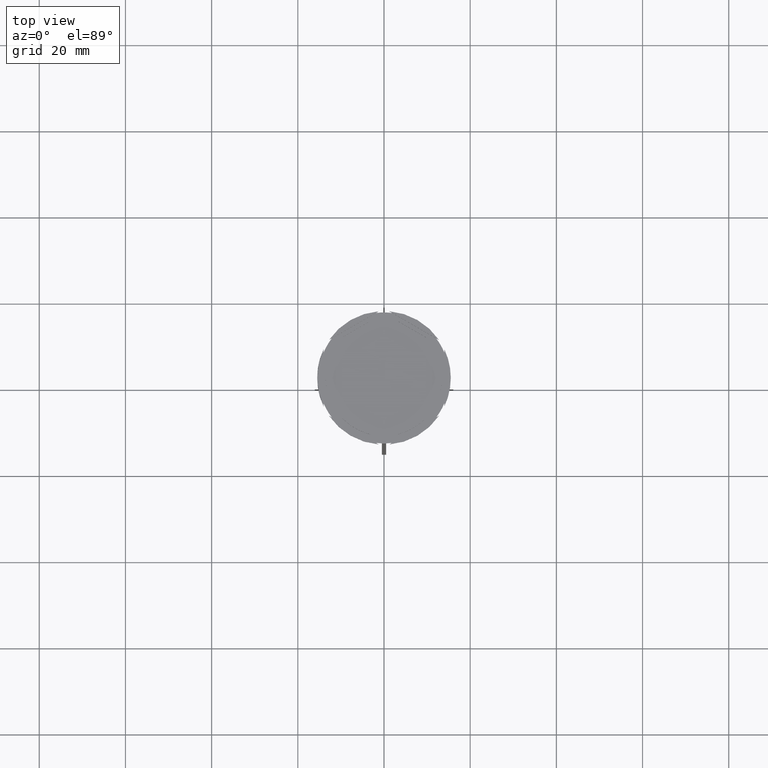
[diagram: clean part render]
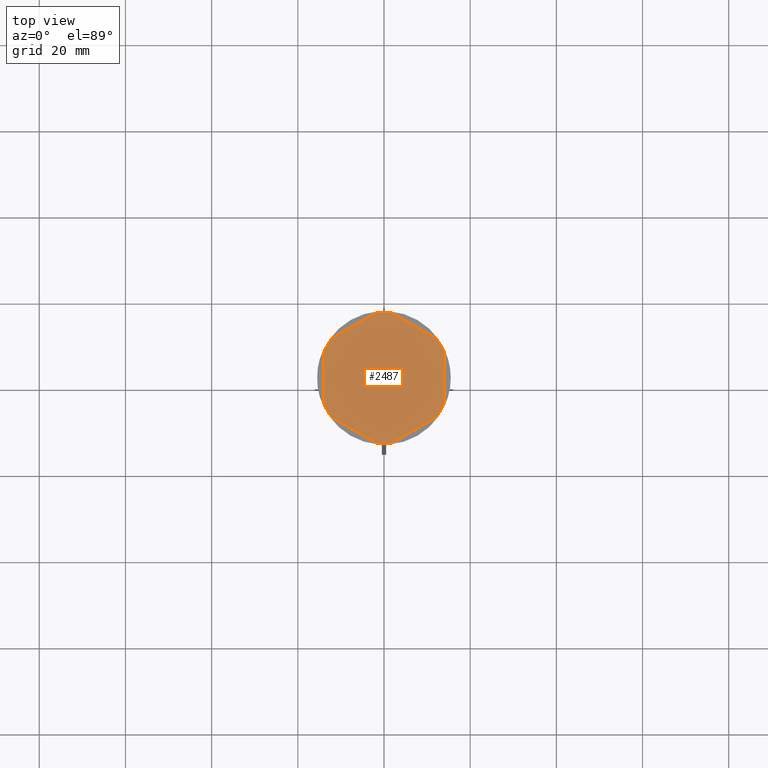
[diagram: same view with one face highlighted and labeled with its STEP entity id]
A machine part, top view. The second image highlights one B-rep face of the part: STEP entity #2487.
In plain terms, the highlighted planar face has unit normal (0, 0, 1).
Its self-contained STEP definition (entity closure, byte-faithful):
#2 = EDGE_CURVE ( 'NONE', #1822, #2410, #1565, .T. ) ;
#12 = DIRECTION ( 'NONE',  ( 1.000000000000000000, 0.000000000000000000, 0.000000000000000000 ) ) ;
#16 = ORIENTED_EDGE ( 'NONE', *, *, #2065, .F. ) ;
#17 = CARTESIAN_POINT ( 'NONE',  ( 14.00000000000000000, 5.919459434779493989, -1.000000000000000000 ) ) ;
#39 = CIRCLE ( 'NONE', #2824, 15.19999999999999929 ) ;
#46 = DIRECTION ( 'NONE',  ( -0.000000000000000000, -0.000000000000000000, -1.000000000000000000 ) ) ;
#57 = PLANE ( 'NONE',  #1030 ) ;
#68 = FACE_OUTER_BOUND ( 'NONE', #2441, .T. ) ;
#89 = ORIENTED_EDGE ( 'NONE', *, *, #1210, .F. ) ;
#92 = CARTESIAN_POINT ( 'NONE',  ( 3.347619946770397537, 13.07835772151782905, -1.000000000000000888 ) ) ;
#108 = ORIENTED_EDGE ( 'NONE', *, *, #473, .F. ) ;
#169 = CARTESIAN_POINT ( 'NONE',  ( 3.347619946770387322, -13.07835772151783083, -1.000000000000000888 ) ) ;
#171 = VERTEX_POINT ( 'NONE', #1006 ) ;
#173 = CIRCLE ( 'NONE', #1246, 15.19999999999999929 ) ;
#181 = VECTOR ( 'NONE', #920, 1000.000000000000000 ) ;
#195 = DIRECTION ( 'NONE',  ( -0.8660254037844385966, 0.5000000000000001110, 0.000000000000000000 ) ) ;
#196 = CARTESIAN_POINT ( 'NONE',  ( -1.873597752809485151, -15.08408537037189312, -1.000000000000000000 ) ) ;
#205 = DIRECTION ( 'NONE',  ( -0.000000000000000000, -0.000000000000000000, -1.000000000000000000 ) ) ;
#221 = CIRCLE ( 'NONE', #1697, 13.50000000000000000 ) ;
#268 = DIRECTION ( 'NONE',  ( 0.000000000000000000, 0.000000000000000000, 1.000000000000000000 ) ) ;
#273 = ORIENTED_EDGE ( 'NONE', *, *, #1247, .F. ) ;
#272 = AXIS2_PLACEMENT_3D ( 'NONE', #1814, #2252, #2688 ) ;
#276 = VERTEX_POINT ( 'NONE', #667 ) ;
#279 = CARTESIAN_POINT ( 'NONE',  ( -13.00000000000000178, -3.640054944640251033, -1.000000000000000888 ) ) ;
#297 = CARTESIAN_POINT ( 'NONE',  ( 0.000000000000000000, 0.000000000000000000, -1.000000000000000000 ) ) ;
#299 = CARTESIAN_POINT ( 'NONE',  ( 0.000000000000000000, 0.000000000000000000, -1.000000000000000000 ) ) ;
#316 = VECTOR ( 'NONE', #195, 1000.000000000000000 ) ;
#321 = CARTESIAN_POINT ( 'NONE',  ( 1.740335835716699810E-15, -16.16580753730952225, -1.000000000000000000 ) ) ;
#323 = VECTOR ( 'NONE', #1494, 1000.000000000000000 ) ;
#327 = VERTEX_POINT ( 'NONE', #678 ) ;
#337 = LINE ( 'NONE', #2774, #2254 ) ;
#372 = CARTESIAN_POINT ( 'NONE',  ( 0.000000000000000000, 0.000000000000000000, -1.000000000000000000 ) ) ;
#384 = ORIENTED_EDGE ( 'NONE', *, *, #386, .F. ) ;
#386 = EDGE_CURVE ( 'NONE', #327, #2874, #1362, .T. ) ;
#390 = CARTESIAN_POINT ( 'NONE',  ( -8.673617379884035472E-16, -15.01110699893027167, -1.000000000000000888 ) ) ;
#393 = LINE ( 'NONE', #453, #503 ) ;
#400 = AXIS2_PLACEMENT_3D ( 'NONE', #2149, #1658, #2654 ) ;
#412 = CARTESIAN_POINT ( 'NONE',  ( 0.000000000000000000, 0.000000000000000000, -1.000000000000000000 ) ) ;
#429 = DIRECTION ( 'NONE',  ( 1.000000000000000000, 0.000000000000000000, 0.000000000000000000 ) ) ;
#435 = VERTEX_POINT ( 'NONE', #1393 ) ;
#450 = ORIENTED_EDGE ( 'NONE', *, *, #1836, .F. ) ;
#453 = CARTESIAN_POINT ( 'NONE',  ( -13.00000000000000178, 7.505553499465134060, -1.000000000000000888 ) ) ;
#460 = ORIENTED_EDGE ( 'NONE', *, *, #2479, .T. ) ;
#473 = EDGE_CURVE ( 'NONE', #2874, #327, #2768, .T. ) ;
#492 = EDGE_LOOP ( 'NONE', ( #2320, #2872 ) ) ;
#498 = EDGE_LOOP ( 'NONE', ( #2759, #89 ) ) ;
#500 = DIRECTION ( 'NONE',  ( 0.000000000000000000, 0.000000000000000000, 1.000000000000000000 ) ) ;
#503 = VECTOR ( 'NONE', #852, 1000.000000000000000 ) ;
#508 = CIRCLE ( 'NONE', #2776, 13.50000000000000000 ) ;
#528 = VERTEX_POINT ( 'NONE', #1832 ) ;
#529 = CARTESIAN_POINT ( 'NONE',  ( 0.000000000000000000, 0.000000000000000000, -1.000000000000000000 ) ) ;
#530 = EDGE_CURVE ( 'NONE', #2239, #1704, #221, .T. ) ;
#531 = DIRECTION ( 'NONE',  ( 1.000000000000000000, -5.329070518200752183E-15, 0.000000000000000000 ) ) ;
#549 = ORIENTED_EDGE ( 'NONE', *, *, #2282, .F. ) ;
#561 = VECTOR ( 'NONE', #633, 1000.000000000000114 ) ;
#617 = EDGE_CURVE ( 'NONE', #905, #1618, #1429, .T. ) ;
#625 = ORIENTED_EDGE ( 'NONE', *, *, #1070, .F. ) ;
#633 = DIRECTION ( 'NONE',  ( 0.8660254037844388186, -0.4999999999999997780, 0.000000000000000000 ) ) ;
#639 = ORIENTED_EDGE ( 'NONE', *, *, #2439, .F. ) ;
#646 = AXIS2_PLACEMENT_3D ( 'NONE', #412, #205, #2222 ) ;
#652 = CIRCLE ( 'NONE', #1575, 15.19999999999999929 ) ;
#667 = CARTESIAN_POINT ( 'NONE',  ( 9.652380053229613566, -9.438302776877582900, -1.000000000000000888 ) ) ;
#678 = CARTESIAN_POINT ( 'NONE',  ( 13.00000000000000178, 3.640054944640248369, -1.000000000000000888 ) ) ;
#697 = VECTOR ( 'NONE', #1820, 1000.000000000000114 ) ;
#706 = DIRECTION ( 'NONE',  ( 1.000000000000000000, 0.000000000000000000, 0.000000000000000000 ) ) ;
#727 = EDGE_CURVE ( 'NONE', #1566, #1618, #337, .T. ) ;
#728 = ORIENTED_EDGE ( 'NONE', *, *, #727, .T. ) ;
#733 = VECTOR ( 'NONE', #1374, 1000.000000000000000 ) ;
#787 = VERTEX_POINT ( 'NONE', #1436 ) ;
#798 = CARTESIAN_POINT ( 'NONE',  ( 1.873597752809482486, -15.08408537037188779, -1.000000000000000000 ) ) ;
#822 = CARTESIAN_POINT ( 'NONE',  ( 9.652380053229610013, 9.438302776877588229, -1.000000000000000888 ) ) ;
#825 = AXIS2_PLACEMENT_3D ( 'NONE', #1423, #2691, #1150 ) ;
#852 = DIRECTION ( 'NONE',  ( 0.000000000000000000, 1.000000000000000000, 0.000000000000000000 ) ) ;
#905 = VERTEX_POINT ( 'NONE', #2464 ) ;
#919 = ORIENTED_EDGE ( 'NONE', *, *, #2811, .F. ) ;
#920 = DIRECTION ( 'NONE',  ( 0.000000000000000000, -1.000000000000000000, 0.000000000000000000 ) ) ;
#929 = CARTESIAN_POINT ( 'NONE',  ( 0.000000000000000000, 0.000000000000000000, -1.000000000000000000 ) ) ;
#933 = EDGE_LOOP ( 'NONE', ( #273, #2256 ) ) ;
#958 = FACE_BOUND ( 'NONE', #2002, .T. ) ;
#999 = EDGE_CURVE ( 'NONE', #2805, #1747, #393, .T. ) ;
#1006 = CARTESIAN_POINT ( 'NONE',  ( -13.50000000000000000, 0.000000000000000000, -1.000000000000000000 ) ) ;
#1011 = DIRECTION ( 'NONE',  ( 0.8660254037844385966, 0.5000000000000000000, 0.000000000000000000 ) ) ;
#1012 = CARTESIAN_POINT ( 'NONE',  ( 0.000000000000000000, 15.01110699893027167, -1.000000000000000888 ) ) ;
#1018 = DIRECTION ( 'NONE',  ( -0.8660254037844387076, 0.4999999999999997780, 0.000000000000000000 ) ) ;
#1030 = AXIS2_PLACEMENT_3D ( 'NONE', #1404, #268, #1158 ) ;
#1040 = EDGE_CURVE ( 'NONE', #1354, #435, #1533, .T. ) ;
#1051 = EDGE_CURVE ( 'NONE', #1566, #1497, #173, .T. ) ;
#1070 = EDGE_CURVE ( 'NONE', #2144, #1749, #2212, .T. ) ;
#1102 = CARTESIAN_POINT ( 'NONE',  ( -13.00000000000000178, -7.505553499465134060, -1.000000000000000888 ) ) ;
#1150 = DIRECTION ( 'NONE',  ( 1.000000000000000000, 0.000000000000000000, 0.000000000000000000 ) ) ;
#1158 = DIRECTION ( 'NONE',  ( 1.000000000000000000, 0.000000000000000000, -0.000000000000000000 ) ) ;
#1166 = AXIS2_PLACEMENT_3D ( 'NONE', #2699, #500, #2280 ) ;
#1175 = DIRECTION ( 'NONE',  ( 1.000000000000000000, 0.000000000000000000, 0.000000000000000000 ) ) ;
#1210 = EDGE_CURVE ( 'NONE', #1704, #2239, #2708, .T. ) ;
#1219 = LINE ( 'NONE', #1880, #181 ) ;
#1246 = AXIS2_PLACEMENT_3D ( 'NONE', #1344, #2161, #429 ) ;
#1247 = EDGE_CURVE ( 'NONE', #2657, #276, #1572, .T. ) ;
#1260 = CARTESIAN_POINT ( 'NONE',  ( -12.12640224719051751, 9.164625935592393802, -1.000000000000000000 ) ) ;
#1264 = DIRECTION ( 'NONE',  ( 0.000000000000000000, 0.000000000000000000, 1.000000000000000000 ) ) ;
#1279 = DIRECTION ( 'NONE',  ( -0.8660254037844387076, -0.4999999999999999445, 0.000000000000000000 ) ) ;
#1303 = AXIS2_PLACEMENT_3D ( 'NONE', #2473, #1827, #2678 ) ;
#1344 = CARTESIAN_POINT ( 'NONE',  ( 0.000000000000000000, 0.000000000000000000, -1.000000000000000000 ) ) ;
#1354 = VERTEX_POINT ( 'NONE', #1458 ) ;
#1359 = FACE_BOUND ( 'NONE', #1734, .T. ) ;
#1362 = LINE ( 'NONE', #2292, #733 ) ;
#1374 = DIRECTION ( 'NONE',  ( -2.311253228826398661E-16, -1.000000000000000000, 0.000000000000000000 ) ) ;
#1393 = CARTESIAN_POINT ( 'NONE',  ( -9.652380053229617118, -9.438302776877577571, -1.000000000000000888 ) ) ;
#1402 = ORIENTED_EDGE ( 'NONE', *, *, #1040, .F. ) ;
#1404 = CARTESIAN_POINT ( 'NONE',  ( 0.000000000000000000, 0.000000000000000000, -1.000000000000000000 ) ) ;
#1406 = DIRECTION ( 'NONE',  ( 1.000000000000000000, 0.000000000000000000, 0.000000000000000000 ) ) ;
#1414 = DIRECTION ( 'NONE',  ( 0.8660254037844387076, -0.5000000000000001110, 0.000000000000000000 ) ) ;
#1423 = CARTESIAN_POINT ( 'NONE',  ( 0.000000000000000000, 0.000000000000000000, -1.000000000000000000 ) ) ;
#1425 = ORIENTED_EDGE ( 'NONE', *, *, #1977, .T. ) ;
#1429 = CIRCLE ( 'NONE', #2023, 15.19999999999999929 ) ;
#1436 = CARTESIAN_POINT ( 'NONE',  ( -14.00000000000000178, 5.919459434779493989, -1.000000000000000000 ) ) ;
#1457 = ORIENTED_EDGE ( 'NONE', *, *, #1051, .F. ) ;
#1458 = CARTESIAN_POINT ( 'NONE',  ( -3.347619946770386434, -13.07835772151782905, -1.000000000000000888 ) ) ;
#1482 = AXIS2_PLACEMENT_3D ( 'NONE', #529, #1573, #706 ) ;
#1494 = DIRECTION ( 'NONE',  ( 0.8660254037844385966, 0.5000000000000001110, -0.000000000000000000 ) ) ;
#1497 = VERTEX_POINT ( 'NONE', #1956 ) ;
#1533 = LINE ( 'NONE', #1102, #316 ) ;
#1558 = EDGE_CURVE ( 'NONE', #276, #2657, #2374, .T. ) ;
#1565 = CIRCLE ( 'NONE', #825, 15.19999999999999929 ) ;
#1566 = VERTEX_POINT ( 'NONE', #2216 ) ;
#1572 = CIRCLE ( 'NONE', #1482, 13.50000000000000000 ) ;
#1573 = DIRECTION ( 'NONE',  ( 0.000000000000000000, 0.000000000000000000, 1.000000000000000000 ) ) ;
#1575 = AXIS2_PLACEMENT_3D ( 'NONE', #297, #2709, #531 ) ;
#1612 = CARTESIAN_POINT ( 'NONE',  ( 0.000000000000000000, 16.16580753730952225, -1.000000000000000000 ) ) ;
#1617 = CIRCLE ( 'NONE', #1166, 13.50000000000000000 ) ;
#1618 = VERTEX_POINT ( 'NONE', #17 ) ;
#1623 = CARTESIAN_POINT ( 'NONE',  ( 13.00000000000000178, -3.640054944640254142, -1.000000000000000888 ) ) ;
#1630 = DIRECTION ( 'NONE',  ( 0.000000000000000000, 0.000000000000000000, 1.000000000000000000 ) ) ;
#1633 = EDGE_CURVE ( 'NONE', #787, #1749, #1219, .T. ) ;
#1658 = DIRECTION ( 'NONE',  ( 0.000000000000000000, 0.000000000000000000, 1.000000000000000000 ) ) ;
#1676 = VERTEX_POINT ( 'NONE', #1869 ) ;
#1697 = AXIS2_PLACEMENT_3D ( 'NONE', #929, #1630, #1406 ) ;
#1704 = VERTEX_POINT ( 'NONE', #92 ) ;
#1720 = ORIENTED_EDGE ( 'NONE', *, *, #1748, .T. ) ;
#1733 = EDGE_LOOP ( 'NONE', ( #108, #384 ) ) ;
#1734 = EDGE_LOOP ( 'NONE', ( #549, #1402 ) ) ;
#1747 = VERTEX_POINT ( 'NONE', #2599 ) ;
#1748 = EDGE_CURVE ( 'NONE', #905, #528, #1922, .T. ) ;
#1749 = VERTEX_POINT ( 'NONE', #2804 ) ;
#1758 = VECTOR ( 'NONE', #1011, 1000.000000000000227 ) ;
#1805 = VECTOR ( 'NONE', #1018, 1000.000000000000114 ) ;
#1814 = CARTESIAN_POINT ( 'NONE',  ( 0.000000000000000000, 0.000000000000000000, -1.000000000000000000 ) ) ;
#1820 = DIRECTION ( 'NONE',  ( -0.8660254037844385966, -0.4999999999999999445, 0.000000000000000000 ) ) ;
#1822 = VERTEX_POINT ( 'NONE', #798 ) ;
#1827 = DIRECTION ( 'NONE',  ( 0.000000000000000000, 0.000000000000000000, 1.000000000000000000 ) ) ;
#1832 = CARTESIAN_POINT ( 'NONE',  ( 1.873597752809481598, 15.08408537037189134, -1.000000000000000000 ) ) ;
#1836 = EDGE_CURVE ( 'NONE', #171, #2805, #508, .T. ) ;
#1867 = CARTESIAN_POINT ( 'NONE',  ( -12.12640224719051218, -9.164625935592404460, -1.000000000000000000 ) ) ;
#1869 = CARTESIAN_POINT ( 'NONE',  ( -3.347619946770386434, 13.07835772151782905, -1.000000000000000888 ) ) ;
#1880 = CARTESIAN_POINT ( 'NONE',  ( -14.00000000000000178, 8.082903768654759347, -1.000000000000000000 ) ) ;
#1896 = CARTESIAN_POINT ( 'NONE',  ( 14.00000000000000178, 8.082903768654762899, -1.000000000000000000 ) ) ;
#1907 = CARTESIAN_POINT ( 'NONE',  ( 0.000000000000000000, 0.000000000000000000, -1.000000000000000000 ) ) ;
#1922 = LINE ( 'NONE', #1896, #1805 ) ;
#1956 = CARTESIAN_POINT ( 'NONE',  ( 12.12640224719051751, -9.164625935592392025, -1.000000000000000000 ) ) ;
#1977 = EDGE_CURVE ( 'NONE', #2144, #2410, #2017, .T. ) ;
#2002 = EDGE_LOOP ( 'NONE', ( #919, #2373, #450 ) ) ;
#2017 = LINE ( 'NONE', #2613, #561 ) ;
#2023 = AXIS2_PLACEMENT_3D ( 'NONE', #1907, #2563, #2772 ) ;
#2047 = LINE ( 'NONE', #1612, #697 ) ;
#2059 = FACE_BOUND ( 'NONE', #1733, .T. ) ;
#2065 = EDGE_CURVE ( 'NONE', #787, #2202, #39, .T. ) ;
#2089 = CIRCLE ( 'NONE', #400, 13.50000000000000000 ) ;
#2091 = CARTESIAN_POINT ( 'NONE',  ( -1.873597752809482486, 15.08408537037188957, -1.000000000000000000 ) ) ;
#2144 = VERTEX_POINT ( 'NONE', #1867 ) ;
#2148 = LINE ( 'NONE', #321, #1758 ) ;
#2149 = CARTESIAN_POINT ( 'NONE',  ( 0.000000000000000000, 0.000000000000000000, -1.000000000000000000 ) ) ;
#2161 = DIRECTION ( 'NONE',  ( -0.000000000000000000, -0.000000000000000000, -1.000000000000000000 ) ) ;
#2169 = VECTOR ( 'NONE', #1414, 999.9999999999998863 ) ;
#2202 = VERTEX_POINT ( 'NONE', #1260 ) ;
#2212 = CIRCLE ( 'NONE', #646, 15.19999999999999929 ) ;
#2216 = CARTESIAN_POINT ( 'NONE',  ( 14.00000000000000000, -5.919459434779497542, -1.000000000000000000 ) ) ;
#2222 = DIRECTION ( 'NONE',  ( 1.000000000000000000, 0.000000000000000000, 0.000000000000000000 ) ) ;
#2239 = VERTEX_POINT ( 'NONE', #822 ) ;
#2244 = EDGE_CURVE ( 'NONE', #2706, #1676, #2580, .T. ) ;
#2248 = CARTESIAN_POINT ( 'NONE',  ( 13.00000000000000355, 7.505553499465135836, -1.000000000000000888 ) ) ;
#2252 = DIRECTION ( 'NONE',  ( 0.000000000000000000, 0.000000000000000000, 1.000000000000000000 ) ) ;
#2254 = VECTOR ( 'NONE', #2359, 1000.000000000000000 ) ;
#2256 = ORIENTED_EDGE ( 'NONE', *, *, #1558, .F. ) ;
#2280 = DIRECTION ( 'NONE',  ( 1.000000000000000000, 0.000000000000000000, 0.000000000000000000 ) ) ;
#2282 = EDGE_CURVE ( 'NONE', #435, #1354, #2089, .T. ) ;
#2292 = CARTESIAN_POINT ( 'NONE',  ( 13.00000000000000000, -7.505553499465137612, -1.000000000000000888 ) ) ;
#2310 = ORIENTED_EDGE ( 'NONE', *, *, #2595, .T. ) ;
#2320 = ORIENTED_EDGE ( 'NONE', *, *, #2493, .F. ) ;
#2346 = VECTOR ( 'NONE', #1279, 1000.000000000000000 ) ;
#2359 = DIRECTION ( 'NONE',  ( 1.073081856240827950E-16, 1.000000000000000000, 0.000000000000000000 ) ) ;
#2373 = ORIENTED_EDGE ( 'NONE', *, *, #999, .F. ) ;
#2374 = LINE ( 'NONE', #390, #2346 ) ;
#2410 = VERTEX_POINT ( 'NONE', #196 ) ;
#2439 = EDGE_CURVE ( 'NONE', #2615, #528, #652, .T. ) ;
#2441 = EDGE_LOOP ( 'NONE', ( #728, #2799, #1720, #639, #460, #16, #2671, #625, #1425, #2857, #2310, #1457 ) ) ;
#2463 = FACE_BOUND ( 'NONE', #933, .T. ) ;
#2464 = CARTESIAN_POINT ( 'NONE',  ( 12.12640224719051574, 9.164625935592399131, -1.000000000000000000 ) ) ;
#2473 = CARTESIAN_POINT ( 'NONE',  ( 0.000000000000000000, 0.000000000000000000, -1.000000000000000000 ) ) ;
#2478 = FACE_BOUND ( 'NONE', #498, .T. ) ;
#2479 = EDGE_CURVE ( 'NONE', #2615, #2202, #2047, .T. ) ;
#2487 = ADVANCED_FACE ( 'NONE', ( #2478, #2059, #2463, #1359, #958, #2726, #68 ), #57, .T. ) ;
#2493 = EDGE_CURVE ( 'NONE', #1676, #2706, #1617, .T. ) ;
#2563 = DIRECTION ( 'NONE',  ( -0.000000000000000000, -0.000000000000000000, -1.000000000000000000 ) ) ;
#2580 = LINE ( 'NONE', #1012, #323 ) ;
#2595 = EDGE_CURVE ( 'NONE', #1822, #1497, #2148, .T. ) ;
#2599 = CARTESIAN_POINT ( 'NONE',  ( -13.00000000000000178, 3.640054944640251033, -1.000000000000000888 ) ) ;
#2613 = CARTESIAN_POINT ( 'NONE',  ( -14.00000000000000178, -8.082903768654762899, -1.000000000000000000 ) ) ;
#2615 = VERTEX_POINT ( 'NONE', #2091 ) ;
#2621 = CARTESIAN_POINT ( 'NONE',  ( -9.652380053229617118, 9.438302776877577571, -1.000000000000000888 ) ) ;
#2638 = CIRCLE ( 'NONE', #1303, 13.50000000000000000 ) ;
#2654 = DIRECTION ( 'NONE',  ( 1.000000000000000000, 0.000000000000000000, 0.000000000000000000 ) ) ;
#2657 = VERTEX_POINT ( 'NONE', #169 ) ;
#2671 = ORIENTED_EDGE ( 'NONE', *, *, #1633, .T. ) ;
#2678 = DIRECTION ( 'NONE',  ( 1.000000000000000000, 0.000000000000000000, 0.000000000000000000 ) ) ;
#2688 = DIRECTION ( 'NONE',  ( 1.000000000000000000, 0.000000000000000000, 0.000000000000000000 ) ) ;
#2691 = DIRECTION ( 'NONE',  ( -0.000000000000000000, -0.000000000000000000, -1.000000000000000000 ) ) ;
#2699 = CARTESIAN_POINT ( 'NONE',  ( 0.000000000000000000, 0.000000000000000000, -1.000000000000000000 ) ) ;
#2706 = VERTEX_POINT ( 'NONE', #2621 ) ;
#2708 = LINE ( 'NONE', #2248, #2169 ) ;
#2709 = DIRECTION ( 'NONE',  ( -0.000000000000000000, -0.000000000000000000, -1.000000000000000000 ) ) ;
#2726 = FACE_BOUND ( 'NONE', #492, .T. ) ;
#2759 = ORIENTED_EDGE ( 'NONE', *, *, #530, .F. ) ;
#2768 = CIRCLE ( 'NONE', #272, 13.50000000000000000 ) ;
#2772 = DIRECTION ( 'NONE',  ( 1.000000000000000000, -9.769962616701377556E-15, 0.000000000000000000 ) ) ;
#2774 = CARTESIAN_POINT ( 'NONE',  ( 14.00000000000000000, -8.082903768654761123, -1.000000000000000000 ) ) ;
#2776 = AXIS2_PLACEMENT_3D ( 'NONE', #372, #1264, #12 ) ;
#2799 = ORIENTED_EDGE ( 'NONE', *, *, #617, .F. ) ;
#2804 = CARTESIAN_POINT ( 'NONE',  ( -14.00000000000000178, -5.919459434779493989, -1.000000000000000000 ) ) ;
#2805 = VERTEX_POINT ( 'NONE', #279 ) ;
#2811 = EDGE_CURVE ( 'NONE', #1747, #171, #2638, .T. ) ;
#2824 = AXIS2_PLACEMENT_3D ( 'NONE', #299, #46, #1175 ) ;
#2857 = ORIENTED_EDGE ( 'NONE', *, *, #2, .F. ) ;
#2872 = ORIENTED_EDGE ( 'NONE', *, *, #2244, .F. ) ;
#2874 = VERTEX_POINT ( 'NONE', #1623 ) ;